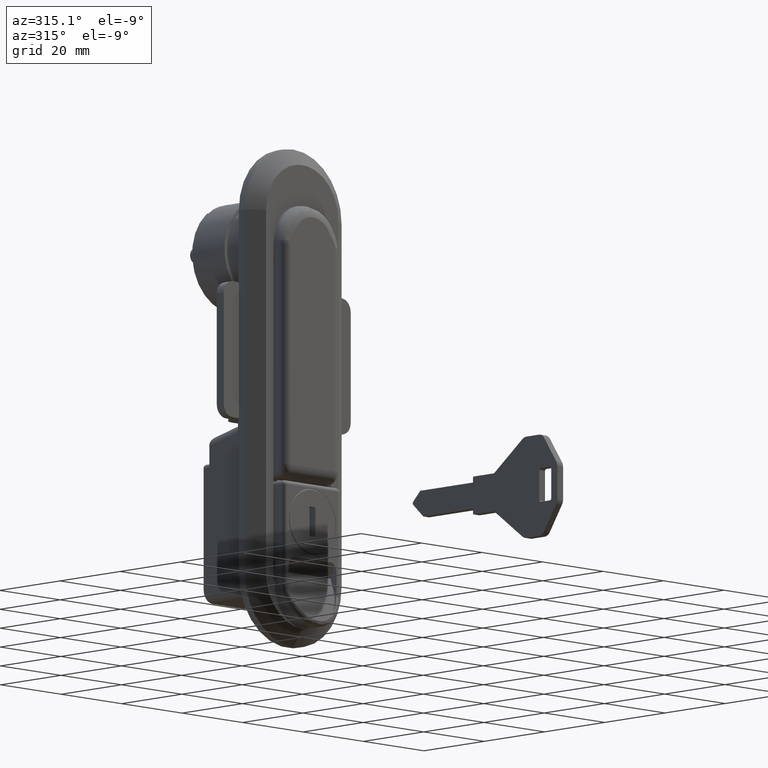
[diagram: clean part render]
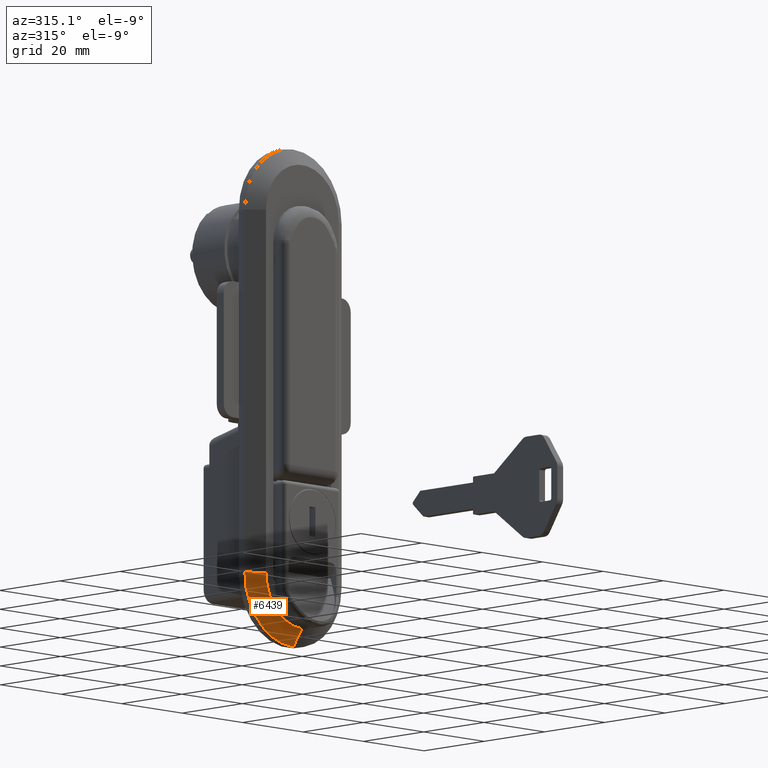
[diagram: same view with one face highlighted and labeled with its STEP entity id]
A machine part, auxiliary view. The second image highlights one B-rep face of the part: STEP entity #6439.
In plain terms, the highlighted conical surface has half-angle 53.13 deg.
Its self-contained STEP definition (entity closure, byte-faithful):
#5381 = CARTESIAN_POINT ( 'NONE',  ( 0.0000000000000000000, -2.842170943040399500E-014, -90.20001488677307600 ) ) ;
#5511 = CARTESIAN_POINT ( 'NONE',  ( 3.000000000000000000, -2.842170943040399500E-014, -94.20000000000000300 ) ) ;
#5512 = DIRECTION ( 'NONE',  ( 0.6000014291326625200, 0.0000000000000000000, -0.7999989281485084800 ) ) ;
#5513 = VECTOR ( 'NONE', #5512, 1000.000000000000000 ) ;
#5514 = CARTESIAN_POINT ( 'NONE',  ( 3.000000000000000000, -2.842170943040399500E-014, -94.20000000000000300 ) ) ;
#5515 = LINE ( 'NONE', #5514, #5513 ) ;
#6432 = VERTEX_POINT ( 'NONE', #11802 ) ;
#6434 = EDGE_CURVE ( 'NONE', #6435, #6432, #11863, .T. ) ;
#6435 = VERTEX_POINT ( 'NONE', #11859 ) ;
#6439 = ADVANCED_FACE ( 'NONE', ( #11854 ), #11853, .T. ) ;
#6440 = EDGE_LOOP ( 'NONE', ( #6441, #6442, #6497, #6498 ) ) ;
#6441 = ORIENTED_EDGE ( 'NONE', *, *, #10535, .F. ) ;
#6442 = ORIENTED_EDGE ( 'NONE', *, *, #6443, .F. ) ;
#6443 = EDGE_CURVE ( 'NONE', #6435, #10478, #11852, .T. ) ;
#6497 = ORIENTED_EDGE ( 'NONE', *, *, #6434, .T. ) ;
#6498 = ORIENTED_EDGE ( 'NONE', *, *, #6499, .T. ) ;
#6499 = EDGE_CURVE ( 'NONE', #6432, #10536, #11958, .T. ) ;
#10478 = VERTEX_POINT ( 'NONE', #5381 ) ;
#10535 = EDGE_CURVE ( 'NONE', #10478, #10536, #5515, .T. ) ;
#10536 = VERTEX_POINT ( 'NONE', #5511 ) ;
#11802 = CARTESIAN_POINT ( 'NONE',  ( 3.000000000000000000, 16.00000000000000000, -78.20000000000000300 ) ) ;
#11844 = DIRECTION ( 'NONE',  ( 0.0000000000000000000, 0.0000000000000000000, -1.000000000000000000 ) ) ;
#11845 = DIRECTION ( 'NONE',  ( -1.000000000000000000, 0.0000000000000000000, 0.0000000000000000000 ) ) ;
#11846 = CARTESIAN_POINT ( 'NONE',  ( 0.0000000000000000000, -2.842170943040399500E-014, -78.20000000000000300 ) ) ;
#11847 = AXIS2_PLACEMENT_3D ( 'NONE', #11846, #11845, #11844 ) ;
#11848 = DIRECTION ( 'NONE',  ( 0.0000000000000000000, 0.0000000000000000000, -1.000000000000000000 ) ) ;
#11849 = DIRECTION ( 'NONE',  ( 1.000000000000000000, 0.0000000000000000000, 0.0000000000000000000 ) ) ;
#11850 = CARTESIAN_POINT ( 'NONE',  ( 3.000000000000000000, -2.842170943040399500E-014, -78.20000000000000300 ) ) ;
#11851 = AXIS2_PLACEMENT_3D ( 'NONE', #11850, #11849, #11848 ) ;
#11852 = CIRCLE ( 'NONE', #11847, 12.00001488677307500 ) ;
#11853 = CONICAL_SURFACE ( 'NONE', #11851, 16.00000000000000000, 0.9272934315845873200 ) ;
#11854 = FACE_OUTER_BOUND ( 'NONE', #6440, .T. ) ;
#11859 = CARTESIAN_POINT ( 'NONE',  ( 0.0000000000000000000, 12.00001488677308000, -78.20000000000000300 ) ) ;
#11860 = DIRECTION ( 'NONE',  ( 0.6000014291326625200, 0.7999989281485084800, -2.581910551470693800E-016 ) ) ;
#11861 = VECTOR ( 'NONE', #11860, 1000.000000000000000 ) ;
#11862 = CARTESIAN_POINT ( 'NONE',  ( -4.680008003099260300, 5.760027439379779700, -78.20000000000000300 ) ) ;
#11863 = LINE ( 'NONE', #11862, #11861 ) ;
#11954 = DIRECTION ( 'NONE',  ( 0.0000000000000000000, 0.0000000000000000000, -1.000000000000000000 ) ) ;
#11955 = DIRECTION ( 'NONE',  ( -1.000000000000000000, 0.0000000000000000000, 0.0000000000000000000 ) ) ;
#11956 = CARTESIAN_POINT ( 'NONE',  ( 3.000000000000000000, -2.842170943040399500E-014, -78.20000000000000300 ) ) ;
#11957 = AXIS2_PLACEMENT_3D ( 'NONE', #11956, #11955, #11954 ) ;
#11958 = CIRCLE ( 'NONE', #11957, 16.00000000000000000 ) ;